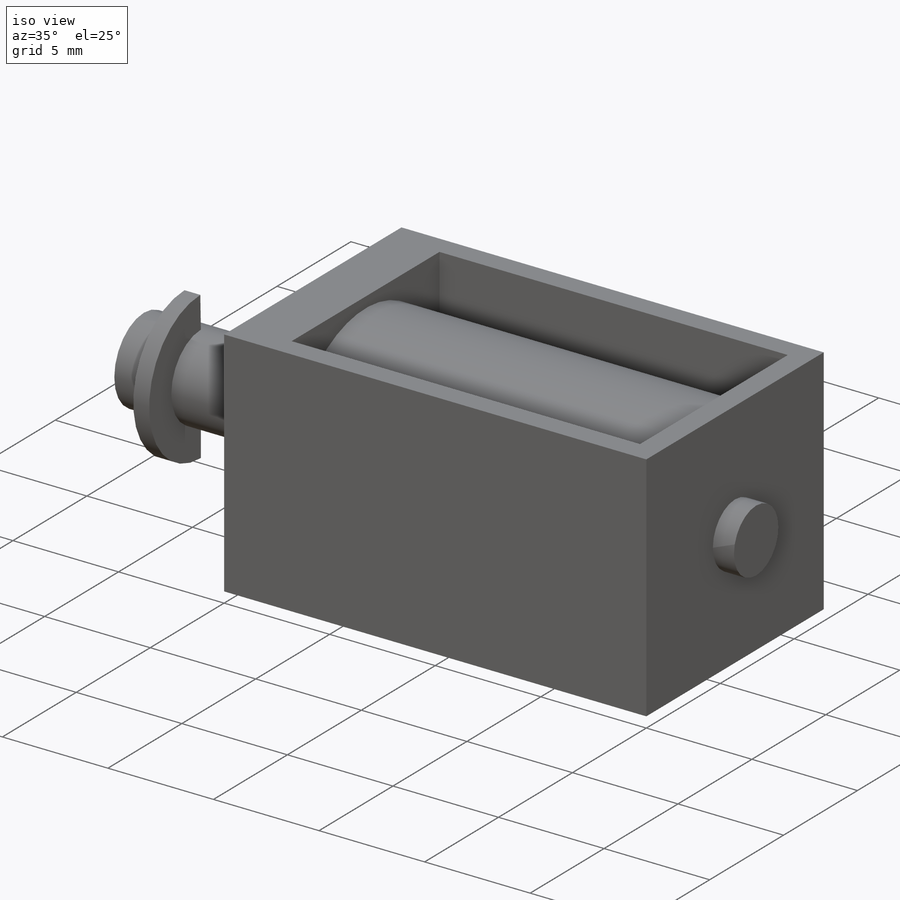
[diagram: iso view]
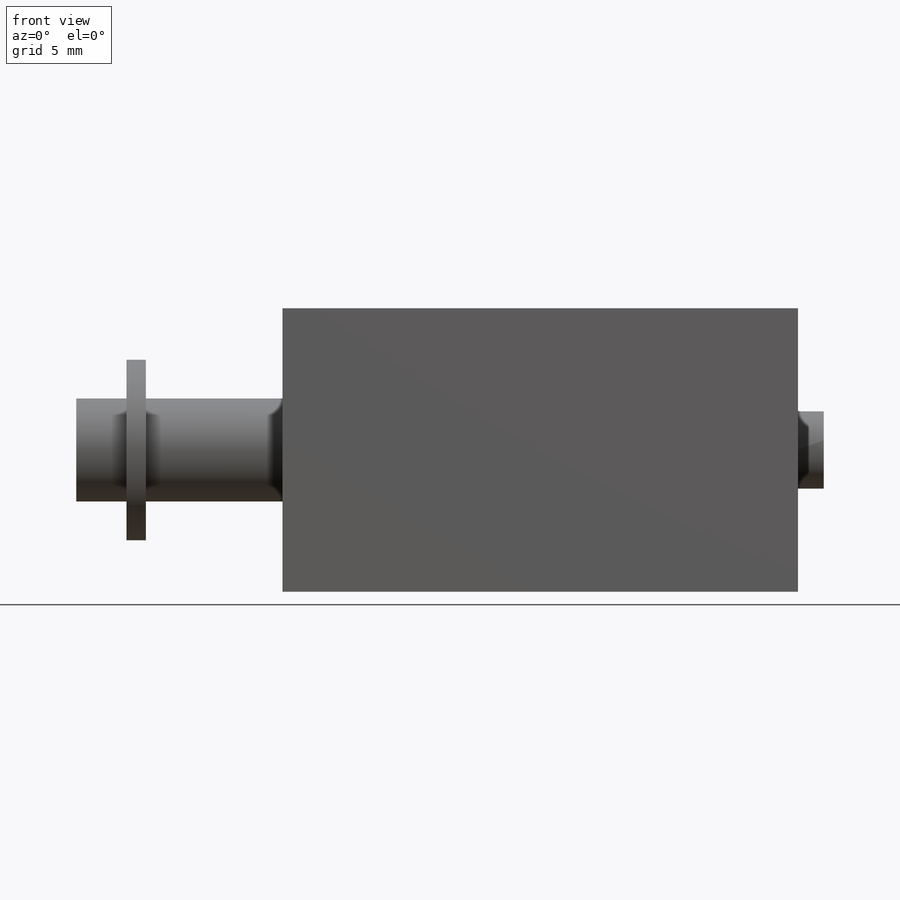
[diagram: front view]
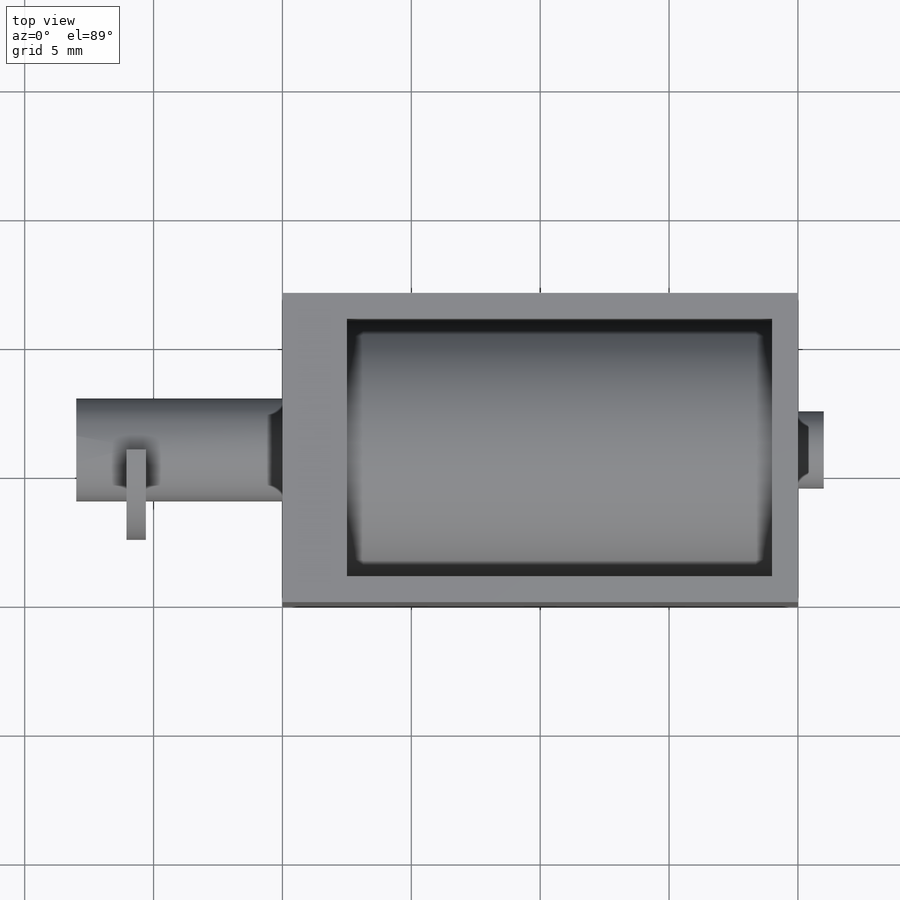
[diagram: top view]
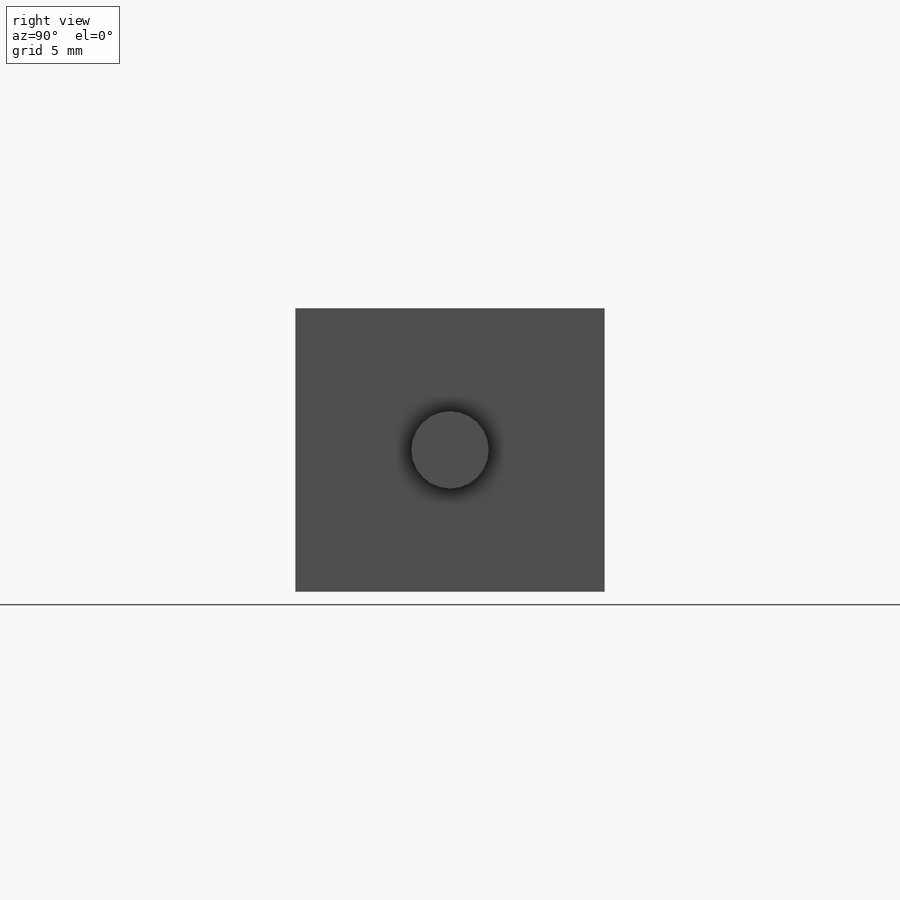
[diagram: right view]
SOLIDWORKS PART (.sldprt)
format: sldprt  version: not decoded by parser v0  size: 225,792 bytes
history: native  units: mm
features: sketch x6, extrude x5, material x1, cut_extrude x1, plane x1 (+13 scaffold rows collapsed)
feature tree (27):
  scaffold x13  (default folders/planes/origin — collapsed)
  material  "Material <not specified>"
  sketch  "Sketch1"  dims[D1=12.0mm D2=20.0mm]
  extrude  "Boss-Extrude1"  Depth=11mm
  sketch  "Sketch3"  dims[D1=1.0mm D2=1.0mm D3=1.0mm D4=2.5mm]
  cut_extrude  "Cut-Extrude1"  [1 undecoded]
  sketch  "Sketch4"
  extrude  "Boss-Extrude3"  [1 undecoded]
  sketch  "Sketch5"  dims[D1=4.0mm]
  extrude  "Boss-Extrude4"  Depth=8mm
  sketch  "Sketch6"  dims[D1=3.0mm]
  extrude  "Boss-Extrude5"  Depth=1mm
  plane  "Plane2"  Offset=5.3mm
  sketch  "Sketch7"  dims[D1=3.5mm]
  extrude  "Boss-Extrude6"  Depth=0.75mm
decode coverage: 9 of 12 modeling features carry decoded parameters
note: 2 parameter values undecoded
note: suppression state not decoded; provenance and decode notes live in map.json
